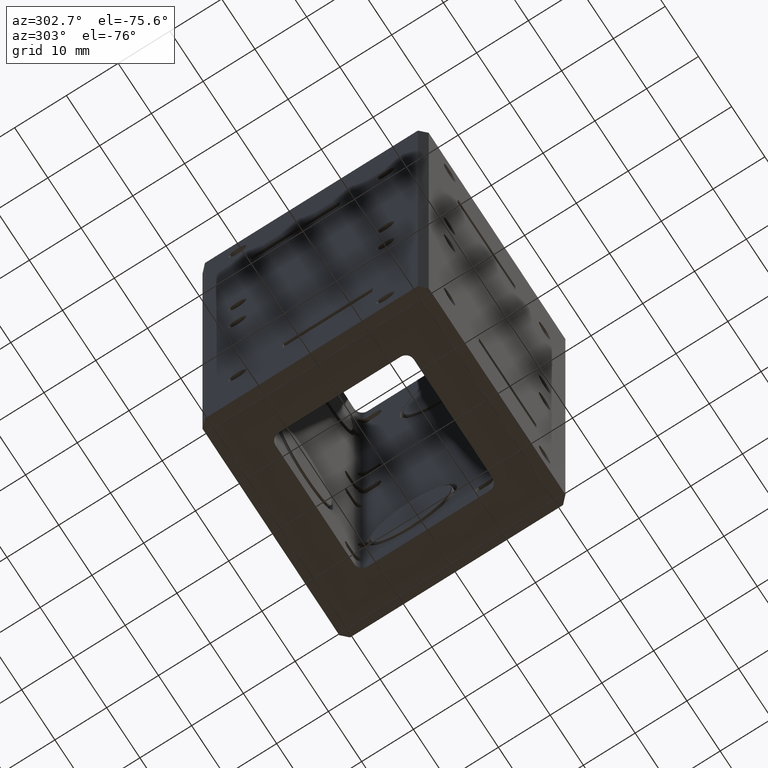
[diagram: clean part render]
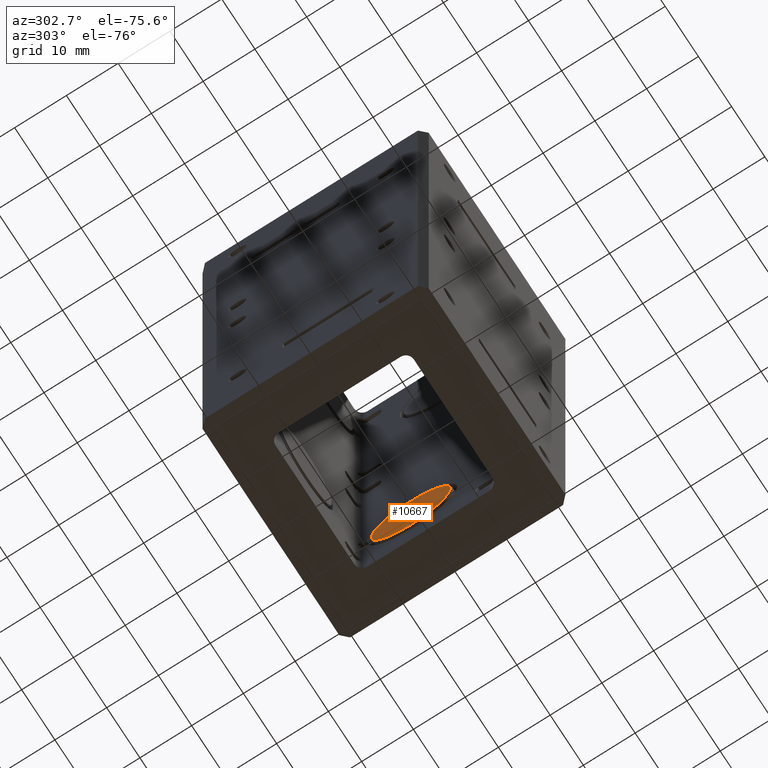
[diagram: same view with one face highlighted and labeled with its STEP entity id]
A machine part, auxiliary view. The second image highlights one B-rep face of the part: STEP entity #10667.
In plain terms, the highlighted planar face has unit normal (-1, 0, 0).
Its self-contained STEP definition (entity closure, byte-faithful):
#619 = AXIS2_PLACEMENT_3D ( 'NONE', #6108, #8795, #16438 ) ;
#1830 = EDGE_LOOP ( 'NONE', ( #16124, #18917 ) ) ;
#1838 = CIRCLE ( 'NONE', #619, 0.3025000000000001021 ) ;
#5729 = VERTEX_POINT ( 'NONE', #5967 ) ;
#5967 = CARTESIAN_POINT ( 'NONE',  ( 0.5124999999999998446, 0.1249999999999982236, -1.677499999999999991 ) ) ;
#6108 = CARTESIAN_POINT ( 'NONE',  ( 0.5124999999999998446, 0.1249999999999982236, -1.375000000000000000 ) ) ;
#6278 = EDGE_CURVE ( 'NONE', #5729, #14349, #1838, .T. ) ;
#6719 = PLANE ( 'NONE',  #13975 ) ;
#6943 = CARTESIAN_POINT ( 'NONE',  ( 0.5124999999999998446, 0.1249999999999981681, -1.072499999999999787 ) ) ;
#6951 = CARTESIAN_POINT ( 'NONE',  ( 0.5124999999999998446, 0.1249999999999982236, -1.375000000000000000 ) ) ;
#8143 = DIRECTION ( 'NONE',  ( -1.000000000000000000, 3.491481338843132961E-15, 0.000000000000000000 ) ) ;
#8795 = DIRECTION ( 'NONE',  ( -1.000000000000000000, 3.491481338843133355E-15, 0.000000000000000000 ) ) ;
#9579 = CARTESIAN_POINT ( 'NONE',  ( 0.5124999999999998446, 0.1249999999999982236, -1.375000000000000000 ) ) ;
#10667 = ADVANCED_FACE ( 'NONE', ( #12752 ), #6719, .T. ) ;
#12752 = FACE_OUTER_BOUND ( 'NONE', #1830, .T. ) ;
#13443 = DIRECTION ( 'NONE',  ( 0.000000000000000000, 0.000000000000000000, -1.000000000000000000 ) ) ;
#13975 = AXIS2_PLACEMENT_3D ( 'NONE', #9579, #8143, #16862 ) ;
#14349 = VERTEX_POINT ( 'NONE', #6943 ) ;
#15998 = EDGE_CURVE ( 'NONE', #14349, #5729, #16874, .T. ) ;
#16124 = ORIENTED_EDGE ( 'NONE', *, *, #6278, .T. ) ;
#16438 = DIRECTION ( 'NONE',  ( 0.000000000000000000, 0.000000000000000000, -1.000000000000000000 ) ) ;
#16862 = DIRECTION ( 'NONE',  ( -0.000000000000000000, 0.000000000000000000, -1.000000000000000000 ) ) ;
#16874 = CIRCLE ( 'NONE', #17493, 0.3025000000000001021 ) ;
#17493 = AXIS2_PLACEMENT_3D ( 'NONE', #6951, #17847, #13443 ) ;
#17847 = DIRECTION ( 'NONE',  ( -1.000000000000000000, 3.491481338843133355E-15, 0.000000000000000000 ) ) ;
#18917 = ORIENTED_EDGE ( 'NONE', *, *, #15998, .T. ) ;